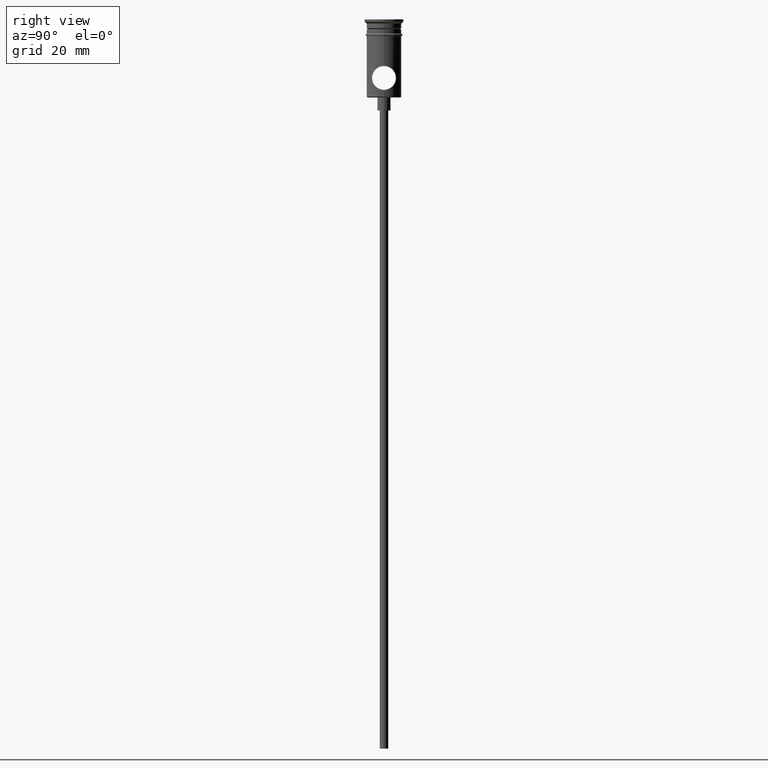
[diagram: clean part render]
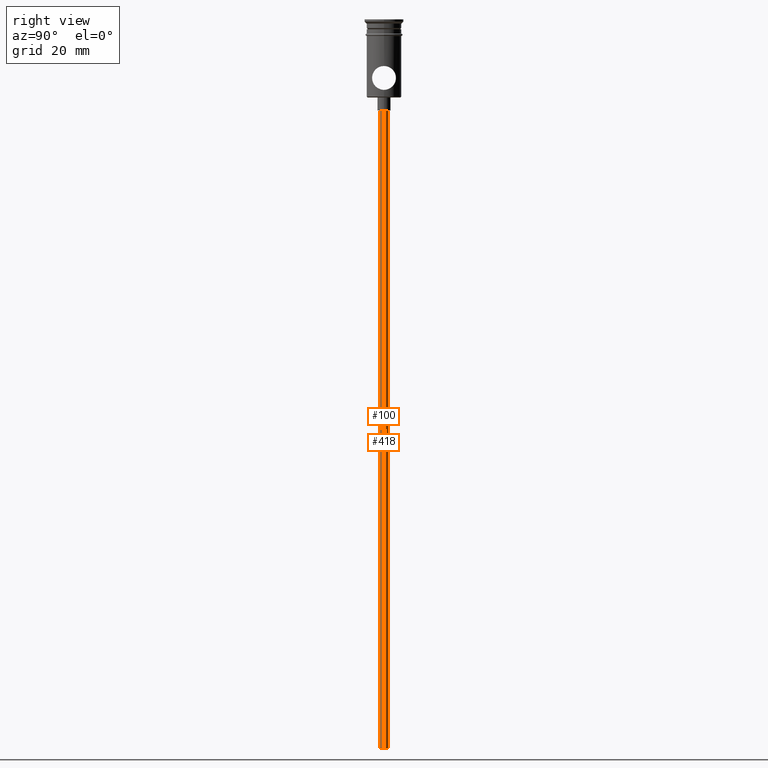
[diagram: same view with one multi-face feature highlighted, each face labeled with its STEP entity id]
A machine part, right view. The highlighted faces form ONE feature: a constant-radius fillet chain: 2 tangent blend faces with common blend radius 1 mm. The faces share edges in the B-rep.
Their STEP definitions:
[1] entity #418 (Cylinder):
#107 = EDGE_CURVE ( 'NONE', #1256, #331, #654, .T. ) ;
#119 = VERTEX_POINT ( 'NONE', #287 ) ;
#140 = CIRCLE ( 'NONE', #461, 0.9999999999999997780 ) ;
#253 = ORIENTED_EDGE ( 'NONE', *, *, #107, .T. ) ;
#287 = CARTESIAN_POINT ( 'NONE',  ( -0.9999999999999997780, 1.224646799147352961E-16, -167.9999999999999716 ) ) ;
#291 = AXIS2_PLACEMENT_3D ( 'NONE', #1357, #695, #1021 ) ;
#330 = CARTESIAN_POINT ( 'NONE',  ( 0.9999999999999997780, 0.000000000000000000, -20.99999999999999645 ) ) ;
#331 = VERTEX_POINT ( 'NONE', #330 ) ;
#372 = CARTESIAN_POINT ( 'NONE',  ( -0.9999999999999997780, 1.224646799147352961E-16, -20.99999999999999645 ) ) ;
#409 = VECTOR ( 'NONE', #413, 1000.000000000000000 ) ;
#411 = DIRECTION ( 'NONE',  ( -1.000000000000000000, 0.000000000000000000, 0.000000000000000000 ) ) ;
#412 = VECTOR ( 'NONE', #1403, 1000.000000000000000 ) ;
#413 = DIRECTION ( 'NONE',  ( -0.000000000000000000, -0.000000000000000000, 1.000000000000000000 ) ) ;
#418 = ADVANCED_FACE ( 'NONE', ( #699 ), #1139, .T. ) ;
#451 = ORIENTED_EDGE ( 'NONE', *, *, #1018, .F. ) ;
#461 = AXIS2_PLACEMENT_3D ( 'NONE', #965, #953, #411 ) ;
#507 = DIRECTION ( 'NONE',  ( -1.000000000000000000, 0.000000000000000000, 0.000000000000000000 ) ) ;
#511 = CARTESIAN_POINT ( 'NONE',  ( 0.9999999999999997780, 0.000000000000000000, -167.9999999999999716 ) ) ;
#544 = ORIENTED_EDGE ( 'NONE', *, *, #554, .T. ) ;
#554 = EDGE_CURVE ( 'NONE', #119, #1256, #1244, .T. ) ;
#555 = CARTESIAN_POINT ( 'NONE',  ( 0.9999999999999997780, 0.000000000000000000, -167.9999999999999716 ) ) ;
#608 = ORIENTED_EDGE ( 'NONE', *, *, #1000, .F. ) ;
#627 = LINE ( 'NONE', #511, #412 ) ;
#654 = CIRCLE ( 'NONE', #1305, 0.9999999999999997780 ) ;
#695 = DIRECTION ( 'NONE',  ( -0.000000000000000000, -0.000000000000000000, 1.000000000000000000 ) ) ;
#699 = FACE_OUTER_BOUND ( 'NONE', #1319, .T. ) ;
#716 = DIRECTION ( 'NONE',  ( 0.000000000000000000, 0.000000000000000000, -1.000000000000000000 ) ) ;
#787 = VERTEX_POINT ( 'NONE', #555 ) ;
#921 = CARTESIAN_POINT ( 'NONE',  ( -0.9999999999999997780, 1.224646799147352961E-16, -167.9999999999999716 ) ) ;
#953 = DIRECTION ( 'NONE',  ( 0.000000000000000000, 0.000000000000000000, -1.000000000000000000 ) ) ;
#965 = CARTESIAN_POINT ( 'NONE',  ( 0.000000000000000000, 0.000000000000000000, -167.9999999999999716 ) ) ;
#1000 = EDGE_CURVE ( 'NONE', #119, #787, #140, .T. ) ;
#1018 = EDGE_CURVE ( 'NONE', #787, #331, #627, .T. ) ;
#1021 = DIRECTION ( 'NONE',  ( 1.000000000000000000, 0.000000000000000000, 0.000000000000000000 ) ) ;
#1139 = CYLINDRICAL_SURFACE ( 'NONE', #291, 0.9999999999999997780 ) ;
#1244 = LINE ( 'NONE', #921, #409 ) ;
#1256 = VERTEX_POINT ( 'NONE', #372 ) ;
#1268 = CARTESIAN_POINT ( 'NONE',  ( 0.000000000000000000, 0.000000000000000000, -20.99999999999999645 ) ) ;
#1305 = AXIS2_PLACEMENT_3D ( 'NONE', #1268, #716, #507 ) ;
#1319 = EDGE_LOOP ( 'NONE', ( #608, #544, #253, #451 ) ) ;
#1357 = CARTESIAN_POINT ( 'NONE',  ( 0.000000000000000000, 0.000000000000000000, -167.9999999999999716 ) ) ;
#1403 = DIRECTION ( 'NONE',  ( -0.000000000000000000, -0.000000000000000000, 1.000000000000000000 ) ) ;
[2] entity #100 (Cylinder):
#2 = AXIS2_PLACEMENT_3D ( 'NONE', #1010, #550, #256 ) ;
#100 = ADVANCED_FACE ( 'NONE', ( #1038 ), #240, .T. ) ;
#119 = VERTEX_POINT ( 'NONE', #287 ) ;
#151 = ORIENTED_EDGE ( 'NONE', *, *, #1018, .T. ) ;
#213 = EDGE_CURVE ( 'NONE', #787, #119, #1330, .T. ) ;
#240 = CYLINDRICAL_SURFACE ( 'NONE', #499, 0.9999999999999997780 ) ;
#256 = DIRECTION ( 'NONE',  ( -1.000000000000000000, 0.000000000000000000, 0.000000000000000000 ) ) ;
#287 = CARTESIAN_POINT ( 'NONE',  ( -0.9999999999999997780, 1.224646799147352961E-16, -167.9999999999999716 ) ) ;
#306 = EDGE_CURVE ( 'NONE', #331, #1256, #1043, .T. ) ;
#310 = DIRECTION ( 'NONE',  ( 0.000000000000000000, 0.000000000000000000, -1.000000000000000000 ) ) ;
#330 = CARTESIAN_POINT ( 'NONE',  ( 0.9999999999999997780, 0.000000000000000000, -20.99999999999999645 ) ) ;
#331 = VERTEX_POINT ( 'NONE', #330 ) ;
#372 = CARTESIAN_POINT ( 'NONE',  ( -0.9999999999999997780, 1.224646799147352961E-16, -20.99999999999999645 ) ) ;
#409 = VECTOR ( 'NONE', #413, 1000.000000000000000 ) ;
#412 = VECTOR ( 'NONE', #1403, 1000.000000000000000 ) ;
#413 = DIRECTION ( 'NONE',  ( -0.000000000000000000, -0.000000000000000000, 1.000000000000000000 ) ) ;
#497 = CARTESIAN_POINT ( 'NONE',  ( 0.000000000000000000, 0.000000000000000000, -167.9999999999999716 ) ) ;
#499 = AXIS2_PLACEMENT_3D ( 'NONE', #497, #1275, #1013 ) ;
#511 = CARTESIAN_POINT ( 'NONE',  ( 0.9999999999999997780, 0.000000000000000000, -167.9999999999999716 ) ) ;
#550 = DIRECTION ( 'NONE',  ( 0.000000000000000000, 0.000000000000000000, -1.000000000000000000 ) ) ;
#554 = EDGE_CURVE ( 'NONE', #119, #1256, #1244, .T. ) ;
#555 = CARTESIAN_POINT ( 'NONE',  ( 0.9999999999999997780, 0.000000000000000000, -167.9999999999999716 ) ) ;
#627 = LINE ( 'NONE', #511, #412 ) ;
#666 = ORIENTED_EDGE ( 'NONE', *, *, #213, .F. ) ;
#787 = VERTEX_POINT ( 'NONE', #555 ) ;
#818 = AXIS2_PLACEMENT_3D ( 'NONE', #1298, #310, #1199 ) ;
#921 = CARTESIAN_POINT ( 'NONE',  ( -0.9999999999999997780, 1.224646799147352961E-16, -167.9999999999999716 ) ) ;
#927 = EDGE_LOOP ( 'NONE', ( #1179, #666, #151, #1229 ) ) ;
#1010 = CARTESIAN_POINT ( 'NONE',  ( 0.000000000000000000, 0.000000000000000000, -20.99999999999999645 ) ) ;
#1013 = DIRECTION ( 'NONE',  ( 1.000000000000000000, 0.000000000000000000, 0.000000000000000000 ) ) ;
#1018 = EDGE_CURVE ( 'NONE', #787, #331, #627, .T. ) ;
#1038 = FACE_OUTER_BOUND ( 'NONE', #927, .T. ) ;
#1043 = CIRCLE ( 'NONE', #2, 0.9999999999999997780 ) ;
#1179 = ORIENTED_EDGE ( 'NONE', *, *, #554, .F. ) ;
#1199 = DIRECTION ( 'NONE',  ( -1.000000000000000000, 0.000000000000000000, 0.000000000000000000 ) ) ;
#1229 = ORIENTED_EDGE ( 'NONE', *, *, #306, .T. ) ;
#1244 = LINE ( 'NONE', #921, #409 ) ;
#1256 = VERTEX_POINT ( 'NONE', #372 ) ;
#1275 = DIRECTION ( 'NONE',  ( -0.000000000000000000, -0.000000000000000000, 1.000000000000000000 ) ) ;
#1298 = CARTESIAN_POINT ( 'NONE',  ( 0.000000000000000000, 0.000000000000000000, -167.9999999999999716 ) ) ;
#1330 = CIRCLE ( 'NONE', #818, 0.9999999999999997780 ) ;
#1403 = DIRECTION ( 'NONE',  ( -0.000000000000000000, -0.000000000000000000, 1.000000000000000000 ) ) ;